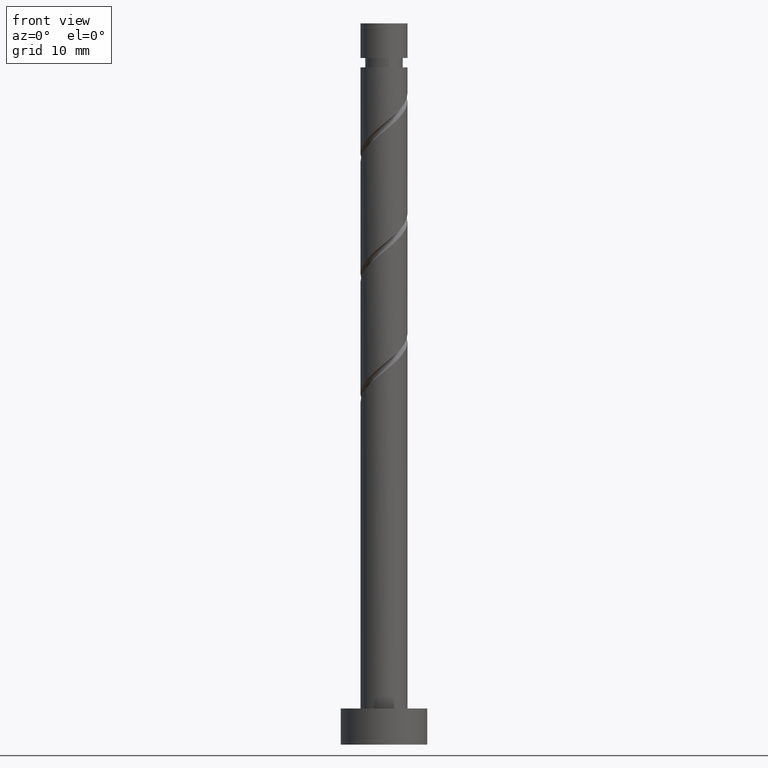
[diagram: clean part render]
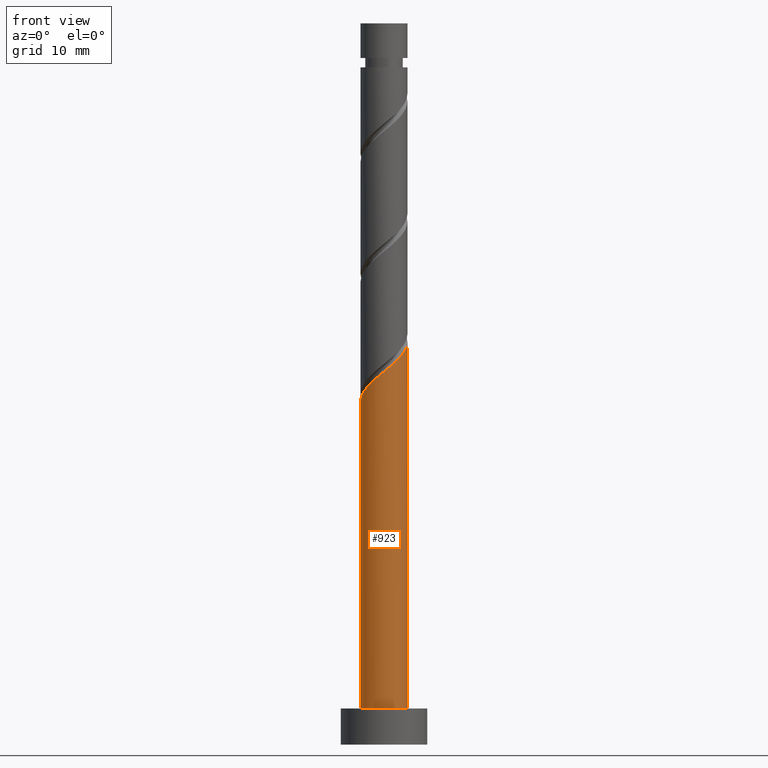
[diagram: same view with one face highlighted and labeled with its STEP entity id]
A machine part, front view. The second image highlights one B-rep face of the part: STEP entity #923.
In plain terms, the highlighted cylindrical surface (edge-blend (fillet) strip) has radius 3.25 mm, axis along (-0, -0, -1).
Its self-contained STEP definition (entity closure, byte-faithful):
#13 = EDGE_LOOP ( 'NONE', ( #353, #418, #796, #260 ) ) ;
#36 = CARTESIAN_POINT ( 'NONE',  ( 3.250000000000004885, -1.852431851814821124E-15, 55.87020965417312368 ) ) ;
#88 = CARTESIAN_POINT ( 'NONE',  ( 1.208343267675765720, -3.070961965091894008, 52.69736083879151067 ) ) ;
#90 =( BOUNDED_CURVE ( )  B_SPLINE_CURVE ( 2, ( #649, #201, #1113, #550, #1011, #452, #437, #1351, #218, #902, #304, #777, #672, #88, #1129, #103, #542, #557, #1018, #625, #1397 ),
 .UNSPECIFIED., .F., .T. ) 
 B_SPLINE_CURVE_WITH_KNOTS ( ( 3, 2, 2, 2, 2, 2, 2, 2, 2, 2, 3 ),
 ( 0.05452480538552895162, 0.05555555555555558023, 0.06944444444444441977, 0.08333333333333337034, 0.09722222222222220989, 0.1111111111111111605, 0.1250000000000000000, 0.1388888888888888395, 0.1527777777777777901, 0.1666666666666666297, 0.1795248053855290626 ),
 .UNSPECIFIED. ) 
 CURVE ( )  GEOMETRIC_REPRESENTATION_ITEM ( )  RATIONAL_B_SPLINE_CURVE ( ( 0.9071930855141245864, 0.9080659294509723090, 0.9090909090909125023, 0.8952797754656470763, 0.9090909090909125023, 0.8952797754656470763, 0.9090909090909125023, 0.8952797754656470763, 0.9090909090909125023, 0.8952797754656470763, 0.9090909090909125023, 0.8952797754656470763, 0.9090909090909125023, 0.8952797754656470763, 0.9090909090909125023, 0.8952797754656470763, 0.9090909090909125023, 0.8952797754656470763, 0.9090909090909125023, 0.8963047551055871587, 0.9071930855141248085 ) ) 
 REPRESENTATION_ITEM ( '' )  );
#103 = CARTESIAN_POINT ( 'NONE',  ( 2.185802103459654422, -2.472482559713971462, 53.62328676471744160 ) ) ;
#134 = DIRECTION ( 'NONE',  ( 0.000000000000000000, 0.000000000000000000, 1.000000000000000000 ) ) ;
#143 = VERTEX_POINT ( 'NONE', #689 ) ;
#199 = LINE ( 'NONE', #658, #927 ) ;
#201 = CARTESIAN_POINT ( 'NONE',  ( -3.250000000000005329, -0.04193044157906313657, 47.57089369477215968 ) ) ;
#218 = CARTESIAN_POINT ( 'NONE',  ( -1.551845548691963117, -2.855569188971784467, 50.38254602397670823 ) ) ;
#260 = ORIENTED_EDGE ( 'NONE', *, *, #298, .T. ) ;
#298 = EDGE_CURVE ( 'NONE', #143, #398, #496, .T. ) ;
#304 = CARTESIAN_POINT ( 'NONE',  ( -0.4815956274168030071, -3.214119732003312802, 51.30847194990263205 ) ) ;
#309 = CARTESIAN_POINT ( 'NONE',  ( -3.250000000000004885, 1.807614952174140588E-15, 47.53687632083978087 ) ) ;
#353 = ORIENTED_EDGE ( 'NONE', *, *, #476, .F. ) ;
#383 = VECTOR ( 'NONE', #1000, 1000.000000000000000 ) ;
#398 = VERTEX_POINT ( 'NONE', #642 ) ;
#418 = ORIENTED_EDGE ( 'NONE', *, *, #1092, .F. ) ;
#437 = CARTESIAN_POINT ( 'NONE',  ( -2.434919993993788889, -2.152594858037460313, 49.45662009805079151 ) ) ;
#452 = CARTESIAN_POINT ( 'NONE',  ( -2.814480546000102112, -1.723252767229862537, 48.99365713508781539 ) ) ;
#460 = CYLINDRICAL_SURFACE ( 'NONE', #1288, 3.250000000000000444 ) ;
#476 = EDGE_CURVE ( 'NONE', #697, #398, #199, .T. ) ;
#494 = EDGE_CURVE ( 'NONE', #1170, #143, #1127, .T. ) ;
#496 = CIRCLE ( 'NONE', #1333, 3.250000000000000444 ) ;
#540 = CARTESIAN_POINT ( 'NONE',  ( -3.250000000000000444, 0.000000000000000000, 100.0000000000000000 ) ) ;
#542 = CARTESIAN_POINT ( 'NONE',  ( 2.542711525011299489, -2.024133913696113396, 54.08624972768041772 ) ) ;
#550 = CARTESIAN_POINT ( 'NONE',  ( -3.234133758856102769, -0.6567188693845373848, 48.06773120916187736 ) ) ;
#557 = CARTESIAN_POINT ( 'NONE',  ( 2.899620946562943669, -1.575785267678254442, 54.54921269064335831 ) ) ;
#589 = DIRECTION ( 'NONE',  ( 1.000000000000000000, 0.000000000000000000, 0.000000000000000000 ) ) ;
#625 = CARTESIAN_POINT ( 'NONE',  ( 3.250000000000004441, -0.5299267084164868136, 55.44029014180750892 ) ) ;
#642 = CARTESIAN_POINT ( 'NONE',  ( 3.250000000000000444, 3.980102097228898231E-16, 5.000000000000000000 ) ) ;
#649 = CARTESIAN_POINT ( 'NONE',  ( -3.250000000000004885, 1.807614952174140588E-15, 47.53687632083978087 ) ) ;
#658 = CARTESIAN_POINT ( 'NONE',  ( 3.250000000000000444, 3.980102097228898231E-16, 100.0000000000000000 ) ) ;
#672 = CARTESIAN_POINT ( 'NONE',  ( 0.6467418341193036380, -3.185000000000004494, 52.23439787582854876 ) ) ;
#681 = DIRECTION ( 'NONE',  ( -0.000000000000000000, -0.000000000000000000, -1.000000000000000000 ) ) ;
#689 = CARTESIAN_POINT ( 'NONE',  ( -3.250000000000000444, 0.000000000000000000, 5.000000000000000000 ) ) ;
#697 = VERTEX_POINT ( 'NONE', #36 ) ;
#777 = CARTESIAN_POINT ( 'NONE',  ( 0.08514040056284115365, -3.299038034908117201, 51.77143491286560106 ) ) ;
#796 = ORIENTED_EDGE ( 'NONE', *, *, #494, .T. ) ;
#902 = CARTESIAN_POINT ( 'NONE',  ( -1.048331655396447459, -3.129201429098509291, 50.84550898693966303 ) ) ;
#923 = ADVANCED_FACE ( 'NONE', ( #1361 ), #460, .T. ) ;
#927 = VECTOR ( 'NONE', #1111, 1000.000000000000000 ) ;
#941 = CARTESIAN_POINT ( 'NONE',  ( 0.000000000000000000, 0.000000000000000000, 5.000000000000000000 ) ) ;
#1000 = DIRECTION ( 'NONE',  ( -0.000000000000000000, -0.000000000000000000, -1.000000000000000000 ) ) ;
#1011 = CARTESIAN_POINT ( 'NONE',  ( -3.024307152428102885, -1.189985818307200072, 48.53069417212485348 ) ) ;
#1018 = CARTESIAN_POINT ( 'NONE',  ( 3.081661828113093637, -1.032405141962545292, 55.01217565360633444 ) ) ;
#1092 = EDGE_CURVE ( 'NONE', #1170, #697, #90, .T. ) ;
#1111 = DIRECTION ( 'NONE',  ( -0.000000000000000000, -0.000000000000000000, -1.000000000000000000 ) ) ;
#1113 = CARTESIAN_POINT ( 'NONE',  ( -3.248918234259673188, -0.08384692656885182893, 47.60476824619892966 ) ) ;
#1127 = LINE ( 'NONE', #540, #383 ) ;
#1129 = CARTESIAN_POINT ( 'NONE',  ( 1.697072685567710737, -2.771722262402933179, 53.16032380175449390 ) ) ;
#1144 = CARTESIAN_POINT ( 'NONE',  ( 0.000000000000000000, 0.000000000000000000, 100.0000000000000000 ) ) ;
#1170 = VERTEX_POINT ( 'NONE', #309 ) ;
#1248 = DIRECTION ( 'NONE',  ( -1.000000000000000000, 0.000000000000000000, 0.000000000000000000 ) ) ;
#1288 = AXIS2_PLACEMENT_3D ( 'NONE', #1144, #681, #1248 ) ;
#1333 = AXIS2_PLACEMENT_3D ( 'NONE', #941, #134, #589 ) ;
#1351 = CARTESIAN_POINT ( 'NONE',  ( -2.055359441987476554, -2.581936948845059643, 49.91958306101374632 ) ) ;
#1361 = FACE_OUTER_BOUND ( 'NONE', #13, .T. ) ;
#1397 = CARTESIAN_POINT ( 'NONE',  ( 3.250000000000004885, -1.852431851814821124E-15, 55.87020965417312368 ) ) ;